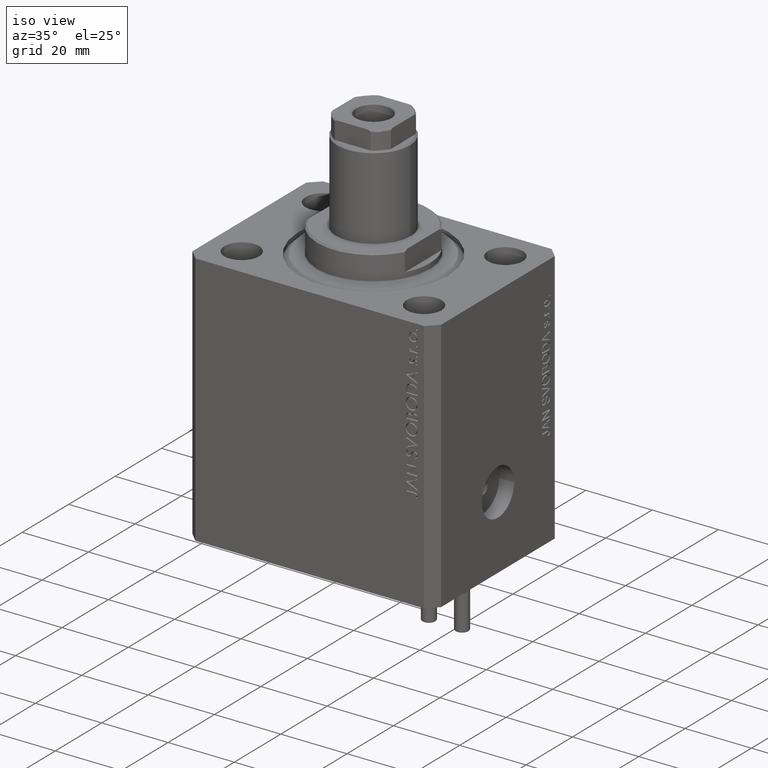
[diagram: clean part render]
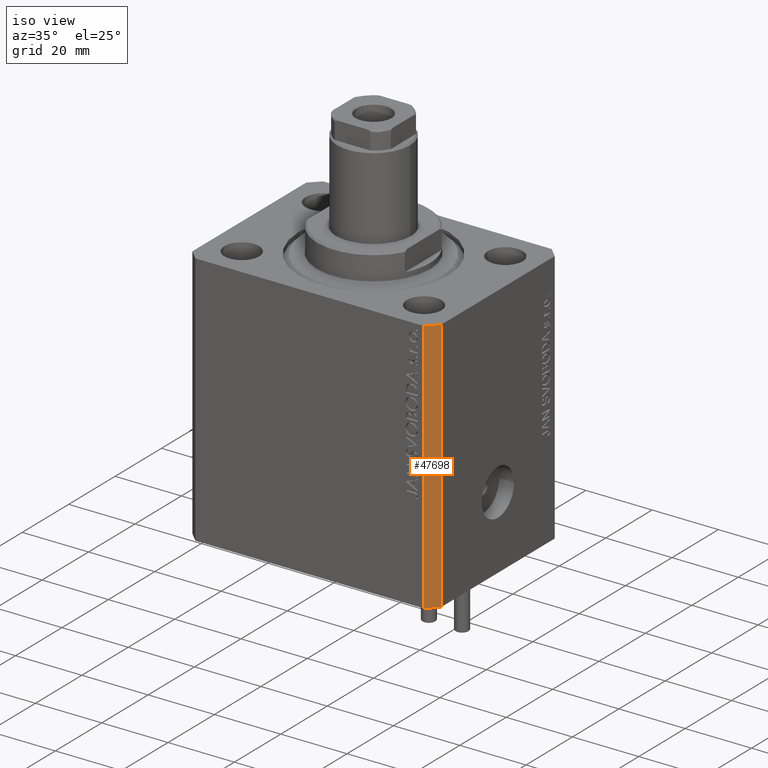
[diagram: same view with one face highlighted and labeled with its STEP entity id]
A machine part, iso view. The second image highlights one B-rep face of the part: STEP entity #47698.
In plain terms, the highlighted planar face has unit normal (0.7071, -0.7071, 0).
Its self-contained STEP definition (entity closure, byte-faithful):
#413 = EDGE_CURVE ( 'NONE', #41050, #32541, #24835, .T. ) ;
#886 = LINE ( 'NONE', #15803, #4087 ) ;
#1176 = PLANE ( 'NONE',  #28718 ) ;
#2107 = ORIENTED_EDGE ( 'NONE', *, *, #38193, .F. ) ;
#2228 = EDGE_CURVE ( 'NONE', #41050, #6054, #41055, .T. ) ;
#3370 = CARTESIAN_POINT ( 'NONE',  ( 37.49999999999999289, -24.50000000000000000, 0.000000000000000000 ) ) ;
#4087 = VECTOR ( 'NONE', #19937, 1000.000000000000114 ) ;
#5018 = LINE ( 'NONE', #23829, #39847 ) ;
#6054 = VERTEX_POINT ( 'NONE', #43793 ) ;
#6884 = CARTESIAN_POINT ( 'NONE',  ( 34.49999999999999289, -27.49999999999999645, 0.000000000000000000 ) ) ;
#9152 = DIRECTION ( 'NONE',  ( 0.000000000000000000, 0.000000000000000000, 1.000000000000000000 ) ) ;
#13366 = ORIENTED_EDGE ( 'NONE', *, *, #35121, .T. ) ;
#15803 = CARTESIAN_POINT ( 'NONE',  ( 34.49999999999999289, -27.49999999999999645, 0.000000000000000000 ) ) ;
#18269 = CARTESIAN_POINT ( 'NONE',  ( 34.49999999999999289, -27.49999999999999645, -77.00000000000000000 ) ) ;
#19937 = DIRECTION ( 'NONE',  ( 0.7071067811865474617, 0.7071067811865474617, 0.000000000000000000 ) ) ;
#20629 = ORIENTED_EDGE ( 'NONE', *, *, #2228, .T. ) ;
#23829 = CARTESIAN_POINT ( 'NONE',  ( 37.49999999999999289, -24.50000000000000000, -77.00000000000000000 ) ) ;
#24224 = VECTOR ( 'NONE', #43405, 1000.000000000000000 ) ;
#24835 = LINE ( 'NONE', #18269, #24224 ) ;
#25491 = VERTEX_POINT ( 'NONE', #3370 ) ;
#28718 = AXIS2_PLACEMENT_3D ( 'NONE', #38311, #35126, #45427 ) ;
#30788 = CARTESIAN_POINT ( 'NONE',  ( 34.49999999999999289, -27.49999999999999645, -77.00000000000000000 ) ) ;
#30986 = FACE_OUTER_BOUND ( 'NONE', #42547, .T. ) ;
#32541 = VERTEX_POINT ( 'NONE', #6884 ) ;
#34197 = DIRECTION ( 'NONE',  ( 0.7071067811865474617, 0.7071067811865474617, 0.000000000000000000 ) ) ;
#35121 = EDGE_CURVE ( 'NONE', #6054, #25491, #5018, .T. ) ;
#35126 = DIRECTION ( 'NONE',  ( 0.7071067811865475727, -0.7071067811865475727, 0.000000000000000000 ) ) ;
#35833 = VECTOR ( 'NONE', #34197, 1000.000000000000114 ) ;
#37686 = CARTESIAN_POINT ( 'NONE',  ( 34.49999999999999289, -27.49999999999999645, -77.00000000000000000 ) ) ;
#38193 = EDGE_CURVE ( 'NONE', #32541, #25491, #886, .T. ) ;
#38311 = CARTESIAN_POINT ( 'NONE',  ( 34.49999999999999289, -27.49999999999999645, -77.00000000000000000 ) ) ;
#39847 = VECTOR ( 'NONE', #9152, 1000.000000000000000 ) ;
#41050 = VERTEX_POINT ( 'NONE', #37686 ) ;
#41055 = LINE ( 'NONE', #30788, #35833 ) ;
#42547 = EDGE_LOOP ( 'NONE', ( #2107, #48082, #20629, #13366 ) ) ;
#43405 = DIRECTION ( 'NONE',  ( 0.000000000000000000, 0.000000000000000000, 1.000000000000000000 ) ) ;
#43793 = CARTESIAN_POINT ( 'NONE',  ( 37.49999999999999289, -24.50000000000000000, -77.00000000000000000 ) ) ;
#45427 = DIRECTION ( 'NONE',  ( 0.7071067811865474617, 0.7071067811865474617, 0.000000000000000000 ) ) ;
#47698 = ADVANCED_FACE ( 'NONE', ( #30986 ), #1176, .T. ) ;
#48082 = ORIENTED_EDGE ( 'NONE', *, *, #413, .F. ) ;